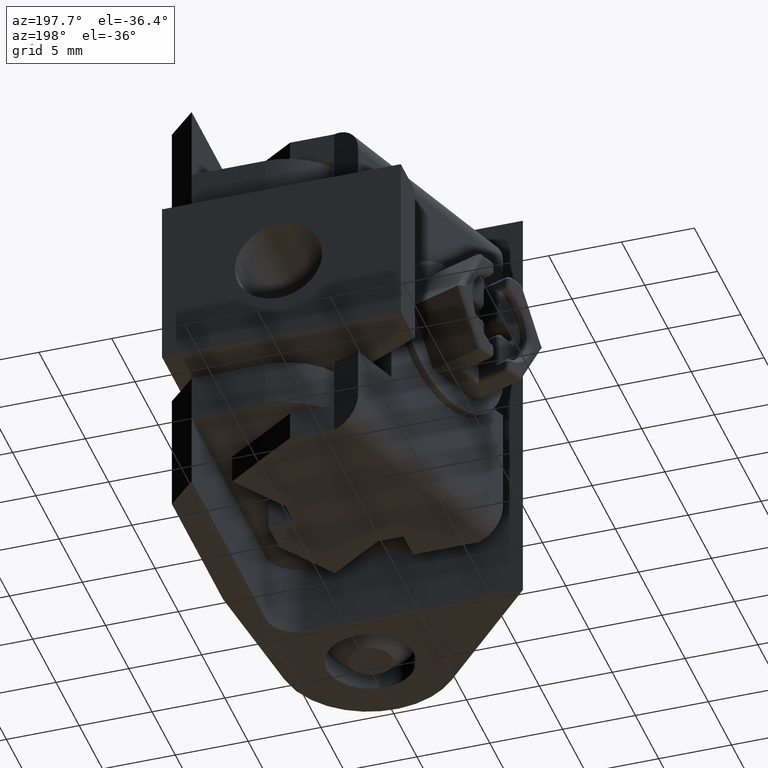
[diagram: clean part render]
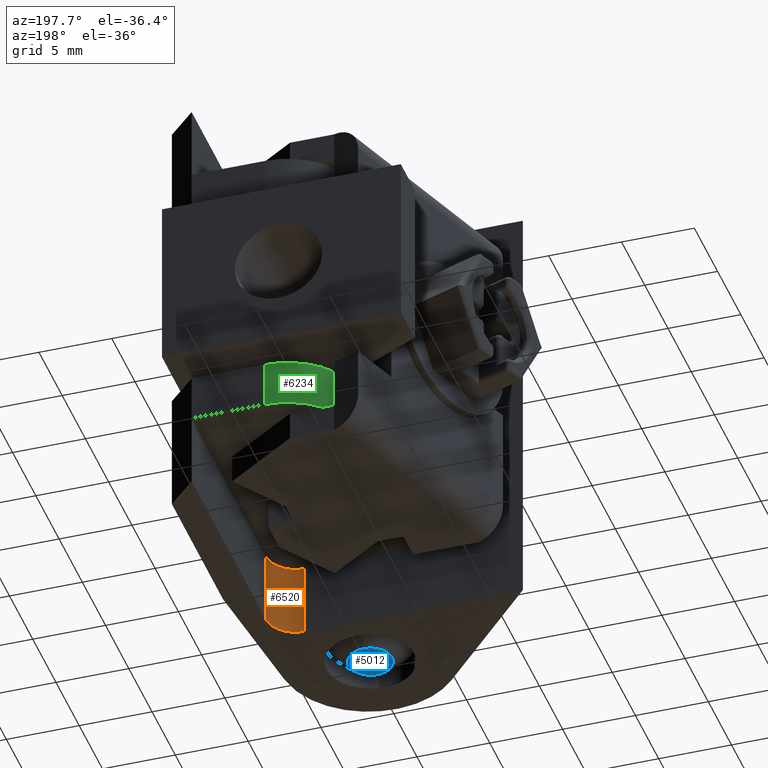
[diagram: same view with three faces highlighted in distinct colors, each labeled with its STEP entity id]
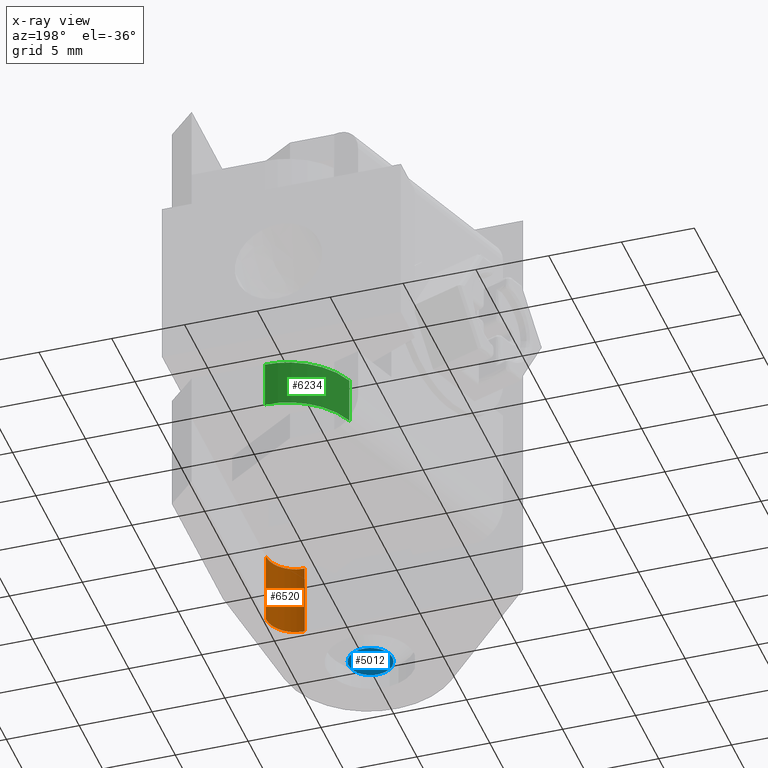
[diagram: x-ray of the same camera — body ghosted, the three highlighted faces saturated]
A machine part, auxiliary view with three faces highlighted in distinct colors.
The next image is the same camera in x-ray (body ghosted, the three faces saturated) — at least one of them is partly hidden behind the body in this view.
Their STEP definitions:

[orange] entity #6520 — the highlighted face is a freeform B-spline surface patch.
#6076=CARTESIAN_POINT('',(5.100000146869590,6.500000308733380,5.100000142494010));
#6077=VERTEX_POINT('',#6076);
#6083=CARTESIAN_POINT('',(3.100000051874685,4.500000213738500,5.100000142494010));
#6084=VERTEX_POINT('',#6083);
#6085=CARTESIAN_POINT('',(5.100000146869590,6.500000308733380,5.100000142494010));
#6086=CARTESIAN_POINT('',(5.100000146869589,4.500000213738496,5.100000142494011));
#6087=CARTESIAN_POINT('',(3.100000051874685,4.500000213738495,5.100000142494010));
#6095=(BOUNDED_CURVE()B_SPLINE_CURVE(2,(#6085,#6086,#6087),.UNSPECIFIED.,.F.,.U.)CURVE()GEOMETRIC_REPRESENTATION_ITEM()QUASI_UNIFORM_CURVE()RATIONAL_B_SPLINE_CURVE((1.0,0.707106781186548,1.0))REPRESENTATION_ITEM(''));
#6096=EDGE_CURVE('',#6077,#6084,#6095,.T.);
#6298=CARTESIAN_POINT('',(3.100000051874685,4.500000213738500,-2.886580E-012));
#6299=VERTEX_POINT('',#6298);
#6305=CARTESIAN_POINT('',(5.100000146869590,6.500000308733380,-2.886580E-012));
#6306=VERTEX_POINT('',#6305);
#6307=CARTESIAN_POINT('',(5.100000146869590,6.500000308733380,-2.886580E-012));
#6308=CARTESIAN_POINT('',(5.100000146869585,4.500000213738501,-2.886580E-012));
#6309=CARTESIAN_POINT('',(3.100000051874685,4.500000213738501,-2.886580E-012));
#6317=(BOUNDED_CURVE()B_SPLINE_CURVE(2,(#6307,#6308,#6309),.UNSPECIFIED.,.F.,.U.)CURVE()GEOMETRIC_REPRESENTATION_ITEM()QUASI_UNIFORM_CURVE()RATIONAL_B_SPLINE_CURVE((1.0,0.707106781186547,1.0))REPRESENTATION_ITEM(''));
#6318=EDGE_CURVE('',#6306,#6299,#6317,.T.);
#6488=CARTESIAN_POINT('',(5.100000146869590,6.500000308733380,5.100000142494010));
#6489=CARTESIAN_POINT('',(5.100000146869590,6.500000308733380,-2.886580E-012));
#6490=QUASI_UNIFORM_CURVE('',1,(#6488,#6489),.UNSPECIFIED.,.F.,.U.);
#6491=EDGE_CURVE('',#6077,#6306,#6490,.T.);
#6496=CARTESIAN_POINT('',(3.047646152772259,4.500685563819939,5.227500146056434));
#6497=CARTESIAN_POINT('',(3.047646152772259,4.500685563819939,-0.130687503654370));
#6498=CARTESIAN_POINT('',(5.191648726708434,4.444542880574709,5.227500146056434));
#6499=CARTESIAN_POINT('',(5.191648726708434,4.444542880574709,-0.130687503654370));
#6500=CARTESIAN_POINT('',(5.098096589942884,6.587239087607689,5.227500146056434));
#6501=CARTESIAN_POINT('',(5.098096589942884,6.587239087607689,-0.130687503654370));
#6509=(BOUNDED_SURFACE()B_SPLINE_SURFACE(1,2,((#6496,#6498,#6500),(#6497,#6499,#6501)),.UNSPECIFIED.,.F.,.F.,.U.)B_SPLINE_SURFACE_WITH_KNOTS((2,2),(3,3),(0.0,5.358187649710803),(0.0,3.478499164907297),.UNSPECIFIED.)GEOMETRIC_REPRESENTATION_ITEM()RATIONAL_B_SPLINE_SURFACE(((1.0,0.681998360062498,1.0),(1.0,0.681998360062498,1.0)))REPRESENTATION_ITEM('')SURFACE());
#6510=CARTESIAN_POINT('',(3.100000051874685,4.500000213738500,5.100000142494010));
#6511=CARTESIAN_POINT('',(3.100000051874685,4.500000213738500,-2.886580E-012));
#6512=QUASI_UNIFORM_CURVE('',1,(#6510,#6511),.UNSPECIFIED.,.F.,.U.);
#6513=EDGE_CURVE('',#6084,#6299,#6512,.T.);
#6514=ORIENTED_EDGE('',*,*,#6513,.F.);
#6515=ORIENTED_EDGE('',*,*,#6096,.F.);
#6516=ORIENTED_EDGE('',*,*,#6491,.T.);
#6517=ORIENTED_EDGE('',*,*,#6318,.T.);
#6518=EDGE_LOOP('',(#6514,#6515,#6516,#6517));
#6519=FACE_OUTER_BOUND('',#6518,.T.);
#6520=ADVANCED_FACE('',(#6519),#6509,.F.);

[blue] entity #5012 — the highlighted face is a freeform B-spline surface patch.
#4554=CARTESIAN_POINT('',(-0.117688532083057,1.495374580082293,3.789805E-011));
#4555=VERTEX_POINT('',#4554);
#4561=CARTESIAN_POINT('',(-1.499998575075166,0.0,3.534950E-013));
#4562=VERTEX_POINT('',#4561);
#4563=CARTESIAN_POINT('',(-1.499998575075166,0.0,3.534950E-013));
#4564=CARTESIAN_POINT('',(-1.499998575075165,1.386584419767094,3.534950E-013));
#4565=CARTESIAN_POINT('',(-0.117688532083057,1.495374580082293,3.789805E-011));
#4573=(BOUNDED_CURVE()B_SPLINE_CURVE(2,(#4563,#4564,#4565),.UNSPECIFIED.,.F.,.U.)B_SPLINE_CURVE_WITH_KNOTS((3,3),(0.0,0.236331300567044),.UNSPECIFIED.)CURVE()GEOMETRIC_REPRESENTATION_ITEM()RATIONAL_B_SPLINE_CURVE((1.0,0.723120658682196,0.969723356034657))REPRESENTATION_ITEM(''));
#4574=EDGE_CURVE('',#4562,#4555,#4573,.T.);
#4576=CARTESIAN_POINT('',(0.117688532083057,-1.495374580082292,3.789724E-011));
#4577=VERTEX_POINT('',#4576);
#4578=CARTESIAN_POINT('',(0.117688532083057,-1.495374580082292,3.789724E-011));
#4579=CARTESIAN_POINT('',(0.058935104814043,-1.499998575075166,3.534950E-013));
#4580=CARTESIAN_POINT('',(0.0,-1.499998575075166,3.534950E-013));
#4581=CARTESIAN_POINT('',(-1.499998575075167,-1.499998575075167,3.534950E-013));
#4582=CARTESIAN_POINT('',(-1.499998575075166,0.0,3.534950E-013));
#4590=(BOUNDED_CURVE()B_SPLINE_CURVE(2,(#4578,#4579,#4580,#4581,#4582),.UNSPECIFIED.,.F.,.U.)B_SPLINE_CURVE_WITH_KNOTS((3,2,3),(0.736331300567044,0.750000000000000,1.0),.UNSPECIFIED.)CURVE()GEOMETRIC_REPRESENTATION_ITEM()RATIONAL_B_SPLINE_CURVE((0.969723356034657,0.983986122504352,1.0,0.707106781186548,1.0))REPRESENTATION_ITEM(''));
#4591=EDGE_CURVE('',#4577,#4562,#4590,.T.);
#4697=CARTESIAN_POINT('',(1.499998575075166,0.0,0.0));
#4698=VERTEX_POINT('',#4697);
#4699=CARTESIAN_POINT('',(1.499998575075166,0.0,0.0));
#4700=CARTESIAN_POINT('',(1.499998575075166,-1.386584419767086,3.267674E-013));
#4701=CARTESIAN_POINT('',(0.117688532083057,-1.495374580082293,3.789724E-011));
#4709=(BOUNDED_CURVE()B_SPLINE_CURVE(2,(#4699,#4700,#4701),.UNSPECIFIED.,.F.,.U.)B_SPLINE_CURVE_WITH_KNOTS((3,3),(0.500000000000000,0.736331300567043),.UNSPECIFIED.)CURVE()GEOMETRIC_REPRESENTATION_ITEM()RATIONAL_B_SPLINE_CURVE((1.0,0.723120658682197,0.969723356034655))REPRESENTATION_ITEM(''));
#4710=EDGE_CURVE('',#4698,#4577,#4709,.T.);
#4712=CARTESIAN_POINT('',(-0.117688532083057,1.495374580082292,3.789805E-011));
#4713=CARTESIAN_POINT('',(-0.058935104814043,1.499998575075166,3.534950E-013));
#4714=CARTESIAN_POINT('',(0.0,1.499998575075166,3.534950E-013));
#4715=CARTESIAN_POINT('',(1.499998575075167,1.499998575075167,3.534950E-013));
#4716=CARTESIAN_POINT('',(1.499998575075166,0.0,0.0));
#4724=(BOUNDED_CURVE()B_SPLINE_CURVE(2,(#4712,#4713,#4714,#4715,#4716),.UNSPECIFIED.,.F.,.U.)B_SPLINE_CURVE_WITH_KNOTS((3,2,3),(0.236331300567044,0.250000000000000,0.500000000000000),.UNSPECIFIED.)CURVE()GEOMETRIC_REPRESENTATION_ITEM()RATIONAL_B_SPLINE_CURVE((0.969723356034657,0.983986122504352,1.0,0.707106781186548,1.0))REPRESENTATION_ITEM(''));
#4725=EDGE_CURVE('',#4555,#4698,#4724,.T.);
#5001=CARTESIAN_POINT('',(-1.649848426910599,-1.649390562250312,1.761492E-013));
#5002=CARTESIAN_POINT('',(1.649848507376793,-1.649390562250312,1.761492E-013));
#5003=CARTESIAN_POINT('',(-1.649848426910598,1.649390642716506,1.761492E-013));
#5004=CARTESIAN_POINT('',(1.649848507376793,1.649390642716506,1.761492E-013));
#5005=B_SPLINE_SURFACE_WITH_KNOTS('',1,1,((#5001,#5003),(#5002,#5004)),.UNSPECIFIED.,.F.,.F.,.U.,(2,2),(2,2),(0.0,3.299696934287391),(0.0,3.298781204966819),.UNSPECIFIED.);
#5006=ORIENTED_EDGE('',*,*,#4574,.T.);
#5007=ORIENTED_EDGE('',*,*,#4725,.T.);
#5008=ORIENTED_EDGE('',*,*,#4710,.T.);
#5009=ORIENTED_EDGE('',*,*,#4591,.T.);
#5010=EDGE_LOOP('',(#5006,#5007,#5008,#5009));
#5011=FACE_OUTER_BOUND('',#5010,.T.);
#5012=ADVANCED_FACE('',(#5011),#5005,.F.);

[green] entity #6234 — the highlighted face is a freeform B-spline surface patch.
#5752=CARTESIAN_POINT('',(0.072408776204796,22.500001068692601,8.350000396605381));
#5753=VERTEX_POINT('',#5752);
#5759=CARTESIAN_POINT('',(-4.655184336387970,19.127841651629151,8.350000396605381));
#5760=VERTEX_POINT('',#5759);
#5761=CARTESIAN_POINT('',(-4.655184336387967,19.127841651629151,8.350000396605381));
#5762=CARTESIAN_POINT('',(-3.494056755960073,22.500001068692601,8.350000396605381));
#5763=CARTESIAN_POINT('',(0.072408776204796,22.500001068692601,8.350000396605381));
#5771=(BOUNDED_CURVE()B_SPLINE_CURVE(2,(#5761,#5762,#5763),.UNSPECIFIED.,.F.,.U.)CURVE()GEOMETRIC_REPRESENTATION_ITEM()QUASI_UNIFORM_CURVE()RATIONAL_B_SPLINE_CURVE((1.0,0.814115516564174,1.0))REPRESENTATION_ITEM(''));
#5772=EDGE_CURVE('',#5760,#5753,#5771,.T.);
#6047=CARTESIAN_POINT('',(-4.655184336387970,19.127841651629151,5.100000142494010));
#6048=VERTEX_POINT('',#6047);
#6054=CARTESIAN_POINT('',(0.072408776204796,22.500001068692601,5.100000142494010));
#6055=VERTEX_POINT('',#6054);
#6056=CARTESIAN_POINT('',(-4.655184336387967,19.127841651629151,5.100000142494010));
#6057=CARTESIAN_POINT('',(-3.494056755960073,22.500001068692601,5.100000142494011));
#6058=CARTESIAN_POINT('',(0.072408776204796,22.500001068692601,5.100000142494010));
#6066=(BOUNDED_CURVE()B_SPLINE_CURVE(2,(#6056,#6057,#6058),.UNSPECIFIED.,.F.,.U.)CURVE()GEOMETRIC_REPRESENTATION_ITEM()QUASI_UNIFORM_CURVE()RATIONAL_B_SPLINE_CURVE((1.0,0.814115516564174,1.0))REPRESENTATION_ITEM(''));
#6067=EDGE_CURVE('',#6048,#6055,#6066,.T.);
#6206=CARTESIAN_POINT('',(0.290505692558248,22.495242177722020,8.431250402958165));
#6207=CARTESIAN_POINT('',(0.290505692558248,22.495242177722020,5.016718885982407));
#6208=CARTESIAN_POINT('',(-3.669493864034054,22.668139467791107,8.431250402958163));
#6209=CARTESIAN_POINT('',(-3.669493864034054,22.668139467791107,5.016718885982407));
#6210=CARTESIAN_POINT('',(-4.741322911797571,18.852032491631395,8.431250402958163));
#6211=CARTESIAN_POINT('',(-4.741322911797571,18.852032491631395,5.016718885982406));
#6219=(BOUNDED_SURFACE()B_SPLINE_SURFACE(1,2,((#6206,#6208,#6210),(#6207,#6209,#6211)),.UNSPECIFIED.,.F.,.F.,.U.)B_SPLINE_SURFACE_WITH_KNOTS((2,2),(3,3),(0.0,3.414531516975758),(0.0,6.965842203909584),.UNSPECIFIED.)GEOMETRIC_REPRESENTATION_ITEM()RATIONAL_B_SPLINE_SURFACE(((1.0,0.780805272531255,0.992801551195616),(1.0,0.780805272531255,0.992801551195616)))REPRESENTATION_ITEM('')SURFACE());
#6220=ORIENTED_EDGE('',*,*,#5772,.T.);
#6221=CARTESIAN_POINT('',(0.072408776204796,22.500001068692601,8.350000396605381));
#6222=CARTESIAN_POINT('',(0.072408776204796,22.500001068692601,5.100000142494010));
#6223=QUASI_UNIFORM_CURVE('',1,(#6221,#6222),.UNSPECIFIED.,.F.,.U.);
#6224=EDGE_CURVE('',#5753,#6055,#6223,.T.);
#6225=ORIENTED_EDGE('',*,*,#6224,.T.);
#6226=ORIENTED_EDGE('',*,*,#6067,.F.);
#6227=CARTESIAN_POINT('',(-4.655184336387970,19.127841651629151,8.350000396605381));
#6228=CARTESIAN_POINT('',(-4.655184336387970,19.127841651629151,5.100000142494010));
#6229=QUASI_UNIFORM_CURVE('',1,(#6227,#6228),.UNSPECIFIED.,.F.,.U.);
#6230=EDGE_CURVE('',#5760,#6048,#6229,.T.);
#6231=ORIENTED_EDGE('',*,*,#6230,.F.);
#6232=EDGE_LOOP('',(#6220,#6225,#6226,#6231));
#6233=FACE_OUTER_BOUND('',#6232,.T.);
#6234=ADVANCED_FACE('',(#6233),#6219,.T.);